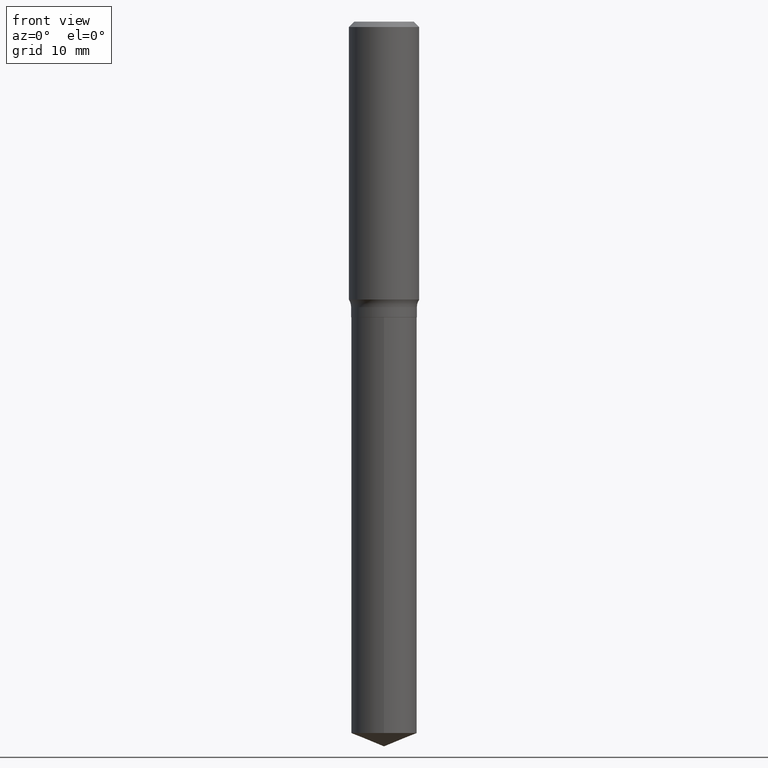
[diagram: clean part render]
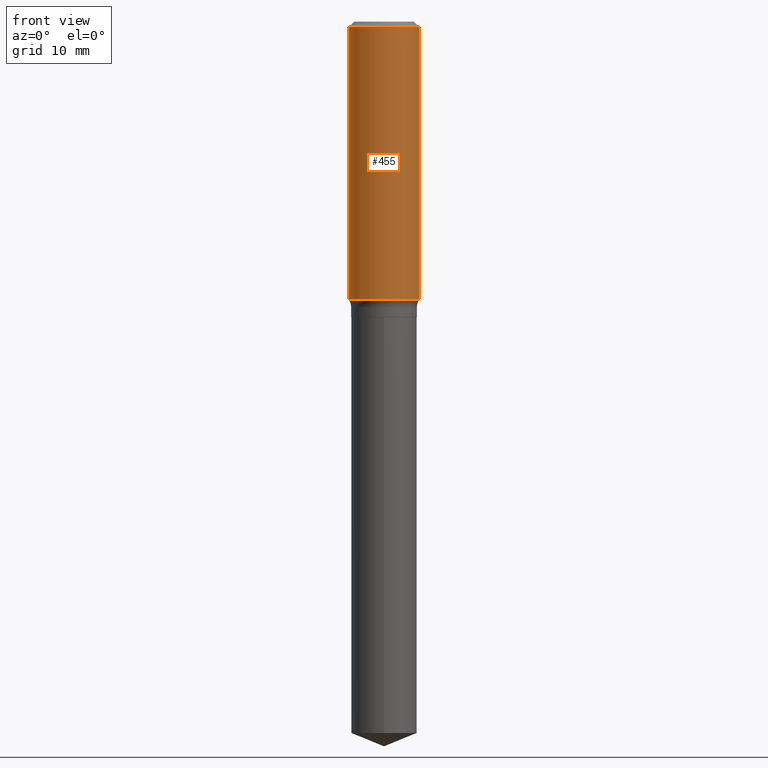
[diagram: same view with one face highlighted and labeled with its STEP entity id]
A machine part, front view. The second image highlights one B-rep face of the part: STEP entity #455.
In plain terms, the highlighted cylindrical surface (edge-blend (fillet) strip) has radius 5 mm, axis along (-0, 0, 1).
Its self-contained STEP definition (entity closure, byte-faithful):
#2 = VERTEX_POINT ( 'NONE', #128 ) ;
#23 = CARTESIAN_POINT ( 'NONE',  ( 0.1968500000000001915, -6.803538488138588411E-15, -1.554910869675405705 ) ) ;
#35 = DIRECTION ( 'NONE',  ( -2.445468806185136877E-29, 3.491481338843145188E-15, 1.000000000000000000 ) ) ;
#48 = AXIS2_PLACEMENT_3D ( 'NONE', #357, #434, #239 ) ;
#57 = ORIENTED_EDGE ( 'NONE', *, *, #356, .T. ) ;
#74 = CARTESIAN_POINT ( 'NONE',  ( 3.802486028189407095E-29, -5.428942285036045225E-15, -1.554910869675405705 ) ) ;
#96 = VERTEX_POINT ( 'NONE', #23 ) ;
#110 = LINE ( 'NONE', #262, #392 ) ;
#115 = CARTESIAN_POINT ( 'NONE',  ( -0.1968500000000000527, -1.367315124790610273E-15, -0.02952750000000018554 ) ) ;
#117 = AXIS2_PLACEMENT_3D ( 'NONE', #166, #168, #395 ) ;
#128 = CARTESIAN_POINT ( 'NONE',  ( -0.1968500000000001915, -4.030238909692286649E-15, -1.554910869675405705 ) ) ;
#140 = CIRCLE ( 'NONE', #48, 0.1968500000000000527 ) ;
#166 = CARTESIAN_POINT ( 'NONE',  ( 0.000000000000000000, 0.000000000000000000, 0.000000000000000000 ) ) ;
#168 = DIRECTION ( 'NONE',  ( -2.445468806185136597E-29, 3.491481338843145583E-15, 1.000000000000000000 ) ) ;
#180 = CIRCLE ( 'NONE', #227, 0.1968500000000002192 ) ;
#219 = DIRECTION ( 'NONE',  ( -2.445468806185136597E-29, 3.491481338843145583E-15, 1.000000000000000000 ) ) ;
#224 = CARTESIAN_POINT ( 'NONE',  ( 0.1968500000000000527, -1.477690918335233688E-15, -0.02952750000000018554 ) ) ;
#227 = AXIS2_PLACEMENT_3D ( 'NONE', #74, #219, #267 ) ;
#228 = LINE ( 'NONE', #337, #359 ) ;
#239 = DIRECTION ( 'NONE',  ( 1.000000000000000000, -6.982962677686266711E-15, 0.000000000000000000 ) ) ;
#240 = EDGE_LOOP ( 'NONE', ( #311, #477, #57, #345 ) ) ;
#262 = CARTESIAN_POINT ( 'NONE',  ( -0.1968500000000001082, 1.398703375343757985E-15, -9.682923725166787881E-30 ) ) ;
#264 = EDGE_CURVE ( 'NONE', #2, #96, #180, .T. ) ;
#267 = DIRECTION ( 'NONE',  ( 1.000000000000000000, -6.982962677686265922E-15, 0.000000000000000000 ) ) ;
#280 = CYLINDRICAL_SURFACE ( 'NONE', #117, 0.1968500000000001082 ) ;
#290 = EDGE_CURVE ( 'NONE', #2, #383, #110, .T. ) ;
#299 = DIRECTION ( 'NONE',  ( -2.445468806185136877E-29, 3.491481338843145188E-15, 1.000000000000000000 ) ) ;
#311 = ORIENTED_EDGE ( 'NONE', *, *, #290, .F. ) ;
#337 = CARTESIAN_POINT ( 'NONE',  ( 0.1968500000000001082, -1.374596203102542397E-15, 9.598753983154305062E-30 ) ) ;
#345 = ORIENTED_EDGE ( 'NONE', *, *, #429, .F. ) ;
#355 = VERTEX_POINT ( 'NONE', #224 ) ;
#356 = EDGE_CURVE ( 'NONE', #96, #355, #228, .T. ) ;
#357 = CARTESIAN_POINT ( 'NONE',  ( 7.220858017463207734E-31, -1.030947152326916363E-16, -0.02952750000000018554 ) ) ;
#359 = VECTOR ( 'NONE', #299, 39.37007874015748143 ) ;
#383 = VERTEX_POINT ( 'NONE', #115 ) ;
#388 = FACE_OUTER_BOUND ( 'NONE', #240, .T. ) ;
#392 = VECTOR ( 'NONE', #35, 39.37007874015748143 ) ;
#395 = DIRECTION ( 'NONE',  ( 1.000000000000000000, -6.982962677686266711E-15, 4.876176775795935793E-29 ) ) ;
#429 = EDGE_CURVE ( 'NONE', #383, #355, #140, .T. ) ;
#434 = DIRECTION ( 'NONE',  ( -2.445468806185136597E-29, 3.491481338843145583E-15, 1.000000000000000000 ) ) ;
#455 = ADVANCED_FACE ( 'NONE', ( #388 ), #280, .T. ) ;
#477 = ORIENTED_EDGE ( 'NONE', *, *, #264, .T. ) ;